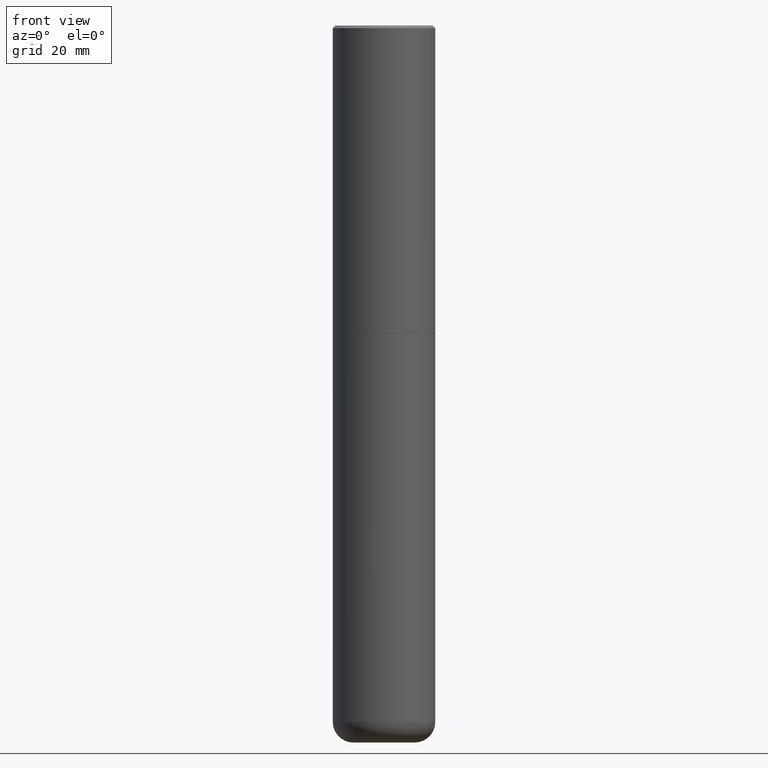
[diagram: clean part render]
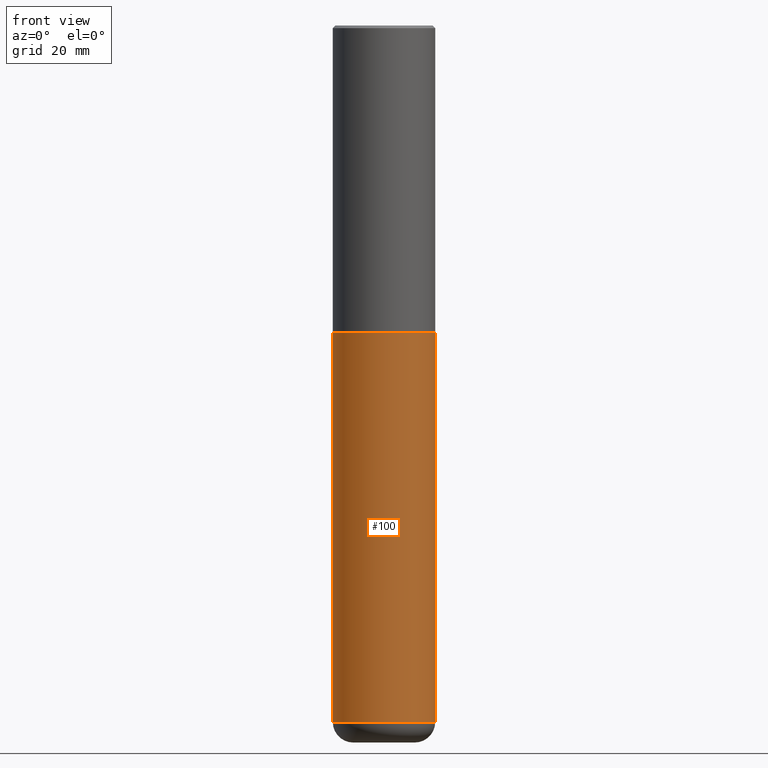
[diagram: same view with one face highlighted and labeled with its STEP entity id]
A machine part, front view. The second image highlights one B-rep face of the part: STEP entity #100.
In plain terms, the highlighted cylindrical surface (partial cylindrical patch) has radius 10 mm, axis along (-0, 0, 1).
Its self-contained STEP definition (entity closure, byte-faithful):
#9 = VERTEX_POINT ( 'NONE', #107 ) ;
#18 = AXIS2_PLACEMENT_3D ( 'NONE', #301, #133, #182 ) ;
#19 = DIRECTION ( 'NONE',  ( 1.000000000000000000, -6.982962677686266711E-15, 0.000000000000000000 ) ) ;
#23 = CARTESIAN_POINT ( 'NONE',  ( -0.3937000000000001054, 2.797406750687515181E-15, -1.936584745033357016E-29 ) ) ;
#28 = EDGE_CURVE ( 'NONE', #9, #357, #294, .T. ) ;
#39 = DIRECTION ( 'NONE',  ( -2.445468806185136877E-29, 3.491481338843145188E-15, 1.000000000000000000 ) ) ;
#40 = CIRCLE ( 'NONE', #372, 0.3937000000000000499 ) ;
#73 = ORIENTED_EDGE ( 'NONE', *, *, #138, .T. ) ;
#100 = ADVANCED_FACE ( 'NONE', ( #105 ), #259, .T. ) ;
#105 = FACE_OUTER_BOUND ( 'NONE', #383, .T. ) ;
#107 = CARTESIAN_POINT ( 'NONE',  ( 0.3936999999999999389, -2.144363093877293707E-14, -5.354300000000000281 ) ) ;
#118 = LINE ( 'NONE', #23, #337 ) ;
#120 = DIRECTION ( 'NONE',  ( -2.445468806185136877E-29, 3.491481338843145188E-15, 1.000000000000000000 ) ) ;
#125 = CARTESIAN_POINT ( 'NONE',  ( -0.3936999999999999389, -1.589703178188033670E-14, -5.354300000000000281 ) ) ;
#133 = DIRECTION ( 'NONE',  ( -2.445468806185136597E-29, 3.491481338843145583E-15, 1.000000000000000000 ) ) ;
#134 = VERTEX_POINT ( 'NONE', #214 ) ;
#138 = EDGE_CURVE ( 'NONE', #350, #9, #360, .T. ) ;
#139 = ORIENTED_EDGE ( 'NONE', *, *, #146, .F. ) ;
#146 = EDGE_CURVE ( 'NONE', #350, #134, #118, .T. ) ;
#173 = ORIENTED_EDGE ( 'NONE', *, *, #205, .F. ) ;
#178 = AXIS2_PLACEMENT_3D ( 'NONE', #345, #407, #19 ) ;
#182 = DIRECTION ( 'NONE',  ( 1.000000000000000000, -6.982962677686266711E-15, 4.876176775795935793E-29 ) ) ;
#185 = DIRECTION ( 'NONE',  ( 1.000000000000000000, -6.982962677686267499E-15, 0.000000000000000000 ) ) ;
#193 = ORIENTED_EDGE ( 'NONE', *, *, #28, .T. ) ;
#204 = CARTESIAN_POINT ( 'NONE',  ( 0.3937000000000001054, -2.749192406205084005E-15, 1.919750796630860452E-29 ) ) ;
#205 = EDGE_CURVE ( 'NONE', #134, #357, #40, .T. ) ;
#214 = CARTESIAN_POINT ( 'NONE',  ( -0.3937000000000000499, -1.067360112490405038E-14, -2.362200000000000077 ) ) ;
#240 = CARTESIAN_POINT ( 'NONE',  ( 5.776686413970529753E-29, -8.247577218615279626E-15, -2.362200000000000077 ) ) ;
#242 = DIRECTION ( 'NONE',  ( -2.445468806185136597E-29, 3.491481338843145583E-15, 1.000000000000000000 ) ) ;
#259 = CYLINDRICAL_SURFACE ( 'NONE', #18, 0.3937000000000001054 ) ;
#294 = LINE ( 'NONE', #204, #300 ) ;
#300 = VECTOR ( 'NONE', #39, 39.37007874015748143 ) ;
#301 = CARTESIAN_POINT ( 'NONE',  ( 0.000000000000000000, 0.000000000000000000, 0.000000000000000000 ) ) ;
#337 = VECTOR ( 'NONE', #120, 39.37007874015748143 ) ;
#345 = CARTESIAN_POINT ( 'NONE',  ( 1.309377362895707575E-28, -1.869443853256785386E-14, -5.354300000000000281 ) ) ;
#350 = VERTEX_POINT ( 'NONE', #125 ) ;
#356 = CARTESIAN_POINT ( 'NONE',  ( 0.3937000000000000499, -1.099676962482036284E-14, -2.362200000000000077 ) ) ;
#357 = VERTEX_POINT ( 'NONE', #356 ) ;
#360 = CIRCLE ( 'NONE', #178, 0.3937000000000001054 ) ;
#372 = AXIS2_PLACEMENT_3D ( 'NONE', #240, #242, #185 ) ;
#383 = EDGE_LOOP ( 'NONE', ( #139, #73, #193, #173 ) ) ;
#407 = DIRECTION ( 'NONE',  ( -2.445468806185136597E-29, 3.491481338843145583E-15, 1.000000000000000000 ) ) ;